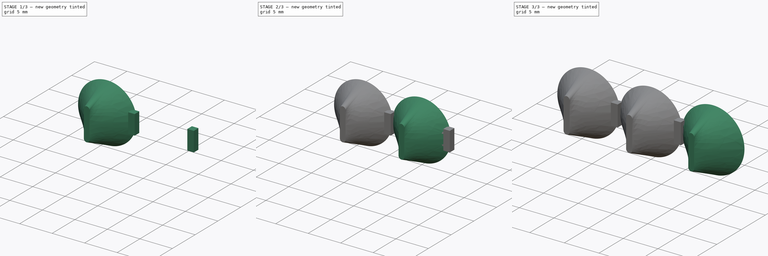
[diagram: build sequence overview — one tinted view per stage of 3, left to right]
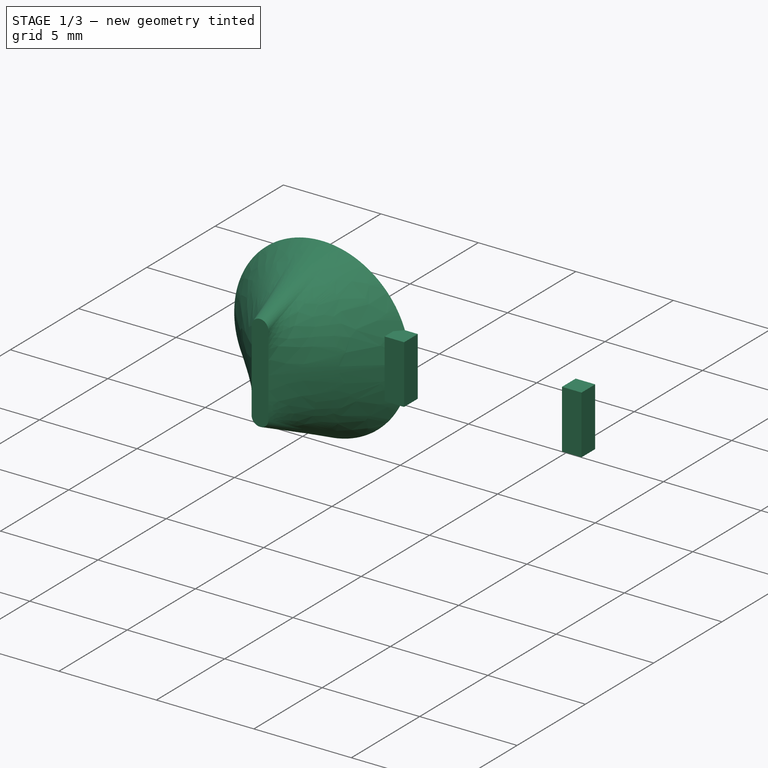
[diagram: stage 1 of 3 — iso view after this stage's code; geometry added in this stage tinted green]
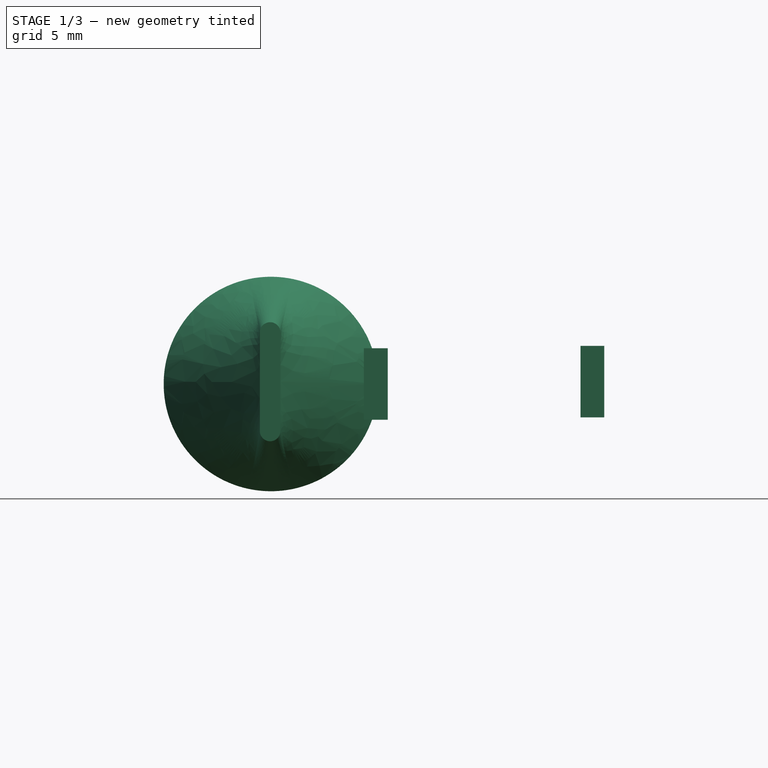
[diagram: stage 1 of 3 — front view after this stage's code; geometry added in this stage tinted green]
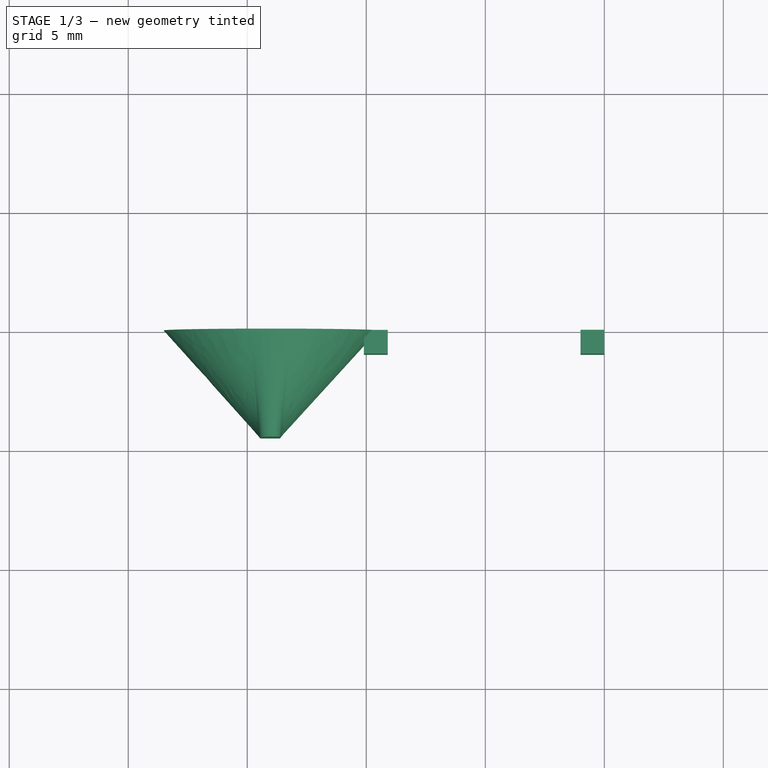
[diagram: stage 1 of 3 — top view after this stage's code; geometry added in this stage tinted green]
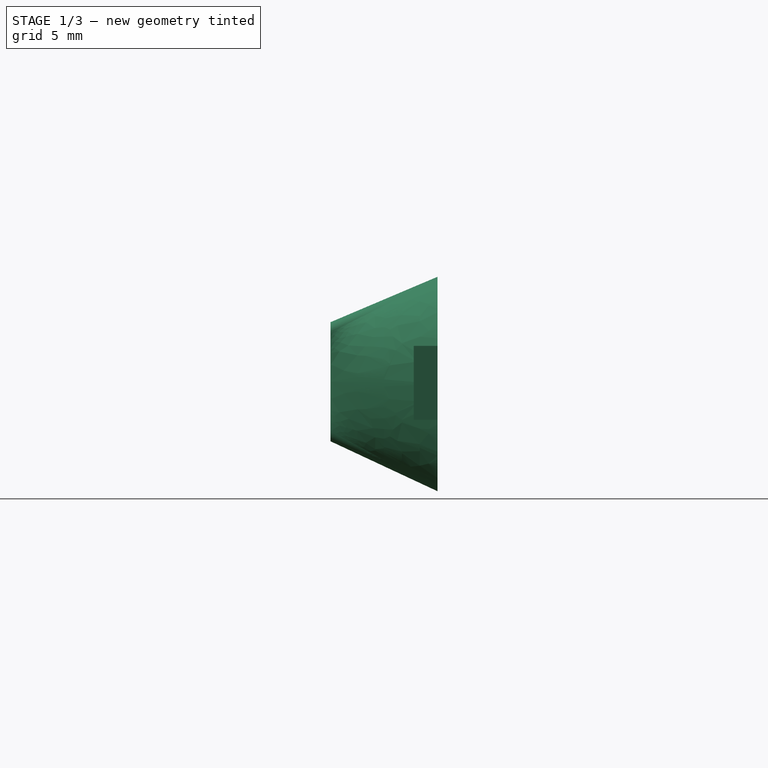
[diagram: stage 1 of 3 — right view after this stage's code; geometry added in this stage tinted green]
FCSTD DOCUMENT  (FreeCAD 0.19R24291 (Git))
Label: actuator8_side
License: All rights reserved
LicenseURL: http://en.wikipedia.org/wiki/All_rights_reserved
objects: Sketcher::SketchObject×13, PartDesign::AdditiveLoft×3, PartDesign::SubtractiveLoft×3, PartDesign::Plane×2, Part::Box×2, Spreadsheet::Sheet×1, PartDesign::Body×1
note: 30 computed .brp shape members not serialized (recipe doc carries the construction recipe); baked Part::Feature solids carry a one-line shape summary decoded from their .brp

FEATURE [Spreadsheet::Sheet] Spreadsheet
  cells = B2=pneumatic ; C2=actuator ; D2=three-section; E2==9mm; B4=soft cylinders; D4=out; E4=in; C5=r ; D5(cyl_r_o)=4.5; E5(cyl_r_in)=4.2; B7=shoulder; D7(shuld)=9
FEATURE [Sketcher::SketchObject] Sketch
  FullyConstrained = false
  MapMode = 5
  Placement = pos=(0,0,0) rot=(1,0,0;1.5708rad)
  Support = -> [XZ_Plane]
  expr: Constraints[11] = Spreadsheet.cyl_r_in
  expr: Constraints[13] = Spreadsheet.cyl_r_in
  expr: Constraints[7] = Spreadsheet.shuld
  expr: Constraints[6] = Spreadsheet.shuld
  expr: Constraints[5] = Spreadsheet.cyl_r_o
  expr: Constraints[4] = Spreadsheet.cyl_r_o
  expr: Constraints[12] = Spreadsheet.cyl_r_in
  expr: Constraints[1] = Spreadsheet.cyl_r_o
  sketch-geometry (16):
    g0: ArcOfCircle CenterX=0 CenterY=0 CenterZ=0 NormalX=0 NormalY=0 NormalZ=1 AngleXU=0 Radius=4.5 StartAngle=3.53897 EndAngle=5.86637
    g1: ArcOfCircle CenterX=-9 CenterY=0 CenterZ=0 NormalX=0 NormalY=0 NormalZ=1 AngleXU=0 Radius=4.5 StartAngle=0.407207 EndAngle=5.88776
    g2: ArcOfCircle CenterX=9 CenterY=0 CenterZ=0 NormalX=0 NormalY=0 NormalZ=1 AngleXU=0 Radius=4.5 StartAngle=3.55697 EndAngle=9.04236
    g3: ArcOfCircle CenterX=0 CenterY=0 CenterZ=0 NormalX=0 NormalY=0 NormalZ=1 AngleXU=0 Radius=4.2 StartAngle=3.54071 EndAngle=5.86248
    g4: ArcOfCircle CenterX=-9 CenterY=0 CenterZ=0 NormalX=0 NormalY=0 NormalZ=1 AngleXU=0 Radius=4.2 StartAngle=0.400501 EndAngle=5.88794
    g5: ArcOfCircle CenterX=9 CenterY=0 CenterZ=0 NormalX=0 NormalY=0 NormalZ=1 AngleXU=0 Radius=4.2 StartAngle=3.55872 EndAngle=9.02431
    g6: ArcOfCircle CenterX=0 CenterY=0 CenterZ=0 NormalX=0 NormalY=0 NormalZ=1 AngleXU=0 Radius=4.2 StartAngle=0.411459 EndAngle=2.74323
    g7: ArcOfCircle CenterX=0 CenterY=0 CenterZ=0 NormalX=0 NormalY=0 NormalZ=1 AngleXU=0 Radius=4.5 StartAngle=0.384244 EndAngle=2.73628
    g8: ArcOfCircle CenterX=-4.49939 CenterY=1.99308 CenterZ=0 NormalX=0 NormalY=0 NormalZ=1 AngleXU=0 Radius=0.424634 StartAngle=3.66126 EndAngle=5.74211
    g9: ArcOfCircle CenterX=-4.49939 CenterY=1.99308 CenterZ=0 NormalX=0 NormalY=0 NormalZ=1 AngleXU=0 Radius=0.726016 StartAngle=3.65342 EndAngle=5.75826
    g10: ArcOfCircle CenterX=-4.50187 CenterY=-2.04426 CenterZ=0 NormalX=0 NormalY=0 NormalZ=1 AngleXU=0 Radius=0.754474 StartAngle=0.577886 EndAngle=2.53985
    g11: ArcOfCircle CenterX=-4.50187 CenterY=-2.04426 CenterZ=0 NormalX=0 NormalY=0 NormalZ=1 AngleXU=0 Radius=0.464673 StartAngle=0.709586 EndAngle=2.40876
    g12: ArcOfCircle CenterX=4.50233 CenterY=2.00473 CenterZ=0 NormalX=0 NormalY=0 NormalZ=1 AngleXU=0 Radius=0.729266 StartAngle=3.60342 EndAngle=5.75529
    g13: ArcOfCircle CenterX=4.50233 CenterY=2.00473 CenterZ=0 NormalX=0 NormalY=0 NormalZ=1 AngleXU=0 Radius=0.458522 StartAngle=3.90757 EndAngle=5.50084
    g14: ArcOfCircle CenterX=4.50046 CenterY=-2.04794 CenterZ=0 NormalX=0 NormalY=0 NormalZ=1 AngleXU=0 Radius=0.745071 StartAngle=0.483492 EndAngle=2.67877
    g15: ArcOfCircle CenterX=4.50046 CenterY=-2.04794 CenterZ=0 NormalX=0 NormalY=0 NormalZ=1 AngleXU=0 Radius=0.447124 StartAngle=0.545626 EndAngle=2.61135
  constraints (37):
    c: Coincident(g0,g-1)
    c: Radius(g0) = 4.5
    c: PointOnObject(g1,g-1)
    c: PointOnObject(g2,g-1)
    c: Radius(g2) = 4.5
    c: Radius(g1) = 4.5
    c: Distance(g0,g1) = 9
    c: Distance(g0,g2) = 9
    c: Coincident(g3,g0)
    c: Coincident(g4,g1)
    c: Coincident(g5,g2)
    c: Radius(g4) = 4.2
    c: Radius(g3) = 4.2
    c: Radius(g5) = 4.2
    c: Equal(g3,g6)
    c: Coincident(g3,g6)
    c: Equal(g0,g7)
    c: Coincident(g0,g7)
    c: Coincident(g8,g1)
    c: Coincident(g8,g7)
    c: Coincident(g9,g8)
    c: Coincident(g9,g4)
    c: Coincident(g9,g6)
    c: Coincident(g10,g4)
    c: Coincident(g10,g3)
    c: Coincident(g11,g10)
    c: Coincident(g11,g1)
    c: Coincident(g11,g0)
    c: Coincident(g12,g6)
    c: Coincident(g12,g5)
    c: Coincident(g13,g12)
    c: Coincident(g13,g7)
    c: Coincident(g14,g3)
    c: Coincident(g14,g5)
    c: Coincident(g15,g14)
    c: Coincident(g15,g0)
    c: Coincident(g15,g2)
FEATURE [PartDesign::Plane] DatumPlane  label="out"
  AttachmentOffset = pos=(0,0,4.5) rot=(0,0,1;0rad)
  Length = 30
  MapMode = 5
  Placement = pos=(0,-4.5,-1e-15) rot=(1,0,0;1.5708rad)
  ResizeMode = 1
  Support = -> [XZ_Plane]
  Width = 30
FEATURE [PartDesign::Plane] DatumPlane001  label="in"
  AttachmentOffset = pos=(0,0,4) rot=(0,0,1;0rad)
  Length = 30
  MapMode = 5
  Placement = pos=(0,-4,-9e-16) rot=(1,0,0;1.5708rad)
  ResizeMode = 1
  Support = -> [XZ_Plane]
  Width = 30
FEATURE [Sketcher::SketchObject] Sketch001  label="ring_out"
  FullyConstrained = false
  MapMode = 5
  Placement = pos=(0,0,0) rot=(1,0,0;1.5708rad)
  Support = -> [XZ_Plane]
  sketch-geometry (1):
    g0: Circle CenterX=-9.00704 CenterY=0 CenterZ=0 NormalX=0 NormalY=0 NormalZ=1 AngleXU=0 Radius=4.50588
  constraints (1):
    c: PointOnObject(g0,g-1)
FEATURE [Sketcher::SketchObject] Sketch002  label="ring_in"
  FullyConstrained = false
  MapMode = 5
  Placement = pos=(0,0,0) rot=(1,0,0;1.5708rad)
  Support = -> [XZ_Plane]
  sketch-geometry (1):
    g0: Circle CenterX=-9.03385 CenterY=0 CenterZ=0 NormalX=0 NormalY=0 NormalZ=1 AngleXU=0 Radius=4.15766
  constraints (1):
    c: PointOnObject(g0,g-1)
FEATURE [Sketcher::SketchObject] Sketch003  label="top_o"
  FullyConstrained = false
  MapMode = 5
  Placement = pos=(0,-4.5,-1e-15) rot=(1,0,0;1.5708rad)
  Support = -> [DatumPlane]
  sketch-geometry (4):
    g0: ArcOfCircle CenterX=-9.03976 CenterY=-1.97382 CenterZ=0 NormalX=0 NormalY=0 NormalZ=1 AngleXU=0 Radius=0.431888 StartAngle=3.14159 EndAngle=6.28319
    g1: ArcOfCircle CenterX=-9.03976 CenterY=2.16511 CenterZ=0 NormalX=0 NormalY=0 NormalZ=1 AngleXU=0 Radius=0.431888 StartAngle=0 EndAngle=3.14159
    g2: LineSegment StartX=-8.60788 StartY=-1.97382 StartZ=0 EndX=-8.60788 EndY=2.16511 EndZ=0
    g3: LineSegment StartX=-9.47165 StartY=-1.97382 StartZ=0 EndX=-9.47165 EndY=2.16511 EndZ=0
  constraints (6):
    c: Tangent(g0,g3) = 1.5708
    c: Tangent(g0,g2) = -1.5708
    c: Tangent(g2,g1) = -1.5708
    c: Tangent(g3,g1) = 1.5708
    c: Vertical(g2)
    c: Equal(g0,g1)
FEATURE [Sketcher::SketchObject] Sketch004  label="top_in"
  FullyConstrained = false
  MapMode = 5
  Placement = pos=(0,-4,-9e-16) rot=(1,0,0;1.5708rad)
  Support = -> [DatumPlane001]
  sketch-geometry (4):
    g0: ArcOfCircle CenterX=-9.00189 CenterY=-1.95045 CenterZ=0 NormalX=0 NormalY=0 NormalZ=1 AngleXU=0 Radius=0.144752 StartAngle=3.14159 EndAngle=6.28319
    g1: ArcOfCircle CenterX=-9.00189 CenterY=1.9096 CenterZ=0 NormalX=0 NormalY=0 NormalZ=1 AngleXU=0 Radius=0.144752 StartAngle=0 EndAngle=3.14159
    g2: LineSegment StartX=-8.85714 StartY=-1.95045 StartZ=0 EndX=-8.85714 EndY=1.9096 EndZ=0
    g3: LineSegment StartX=-9.14664 StartY=-1.95045 StartZ=0 EndX=-9.14664 EndY=1.9096 EndZ=0
  constraints (6):
    c: Tangent(g0,g3) = 1.5708
    c: Tangent(g0,g2) = -1.5708
    c: Tangent(g2,g1) = -1.5708
    c: Tangent(g3,g1) = 1.5708
    c: Vertical(g2)
    c: Equal(g0,g1)
FEATURE [PartDesign::AdditiveLoft] AdditiveLoft  label="left"
  Closed = false
  Placement = pos=(0,0,0) rot=(1,0,0;1.5708rad)
  Profile = -> Sketch001
  Ruled = false
  Sections = -> [Sketch003]
FEATURE [PartDesign::Body] Body
  Group = -> [Sketch,DatumPlane,DatumPlane001,Sketch001,Sketch002,Sketch003,Sketch004,AdditiveLoft,SubtractiveLoft,Sketch005,Sketch006,AdditiveLoft001,Sketch007,Sketch008,SubtractiveLoft001,Sketch009,Sketch010,AdditiveLoft002,Sketch011,Sketch012,SubtractiveLoft002]
  Origin = -> Origin
  Tip = -> SubtractiveLoft002
FEATURE [Part::Box] Box  label="Cube"
  AttacherType = Attacher::AttachEngine3D
  Height = 3
  Length = 1
  Placement = pos=(-5.1,-1,-1.5) rot=(0,0,1;0rad)
  Width = 1
FEATURE [Part::Box] Box001  label="Cube001"
  AttacherType = Attacher::AttachEngine3D
  Height = 3
  Length = 1
  Placement = pos=(4,-1,-1.4) rot=(0,0,1;0rad)
  Width = 1
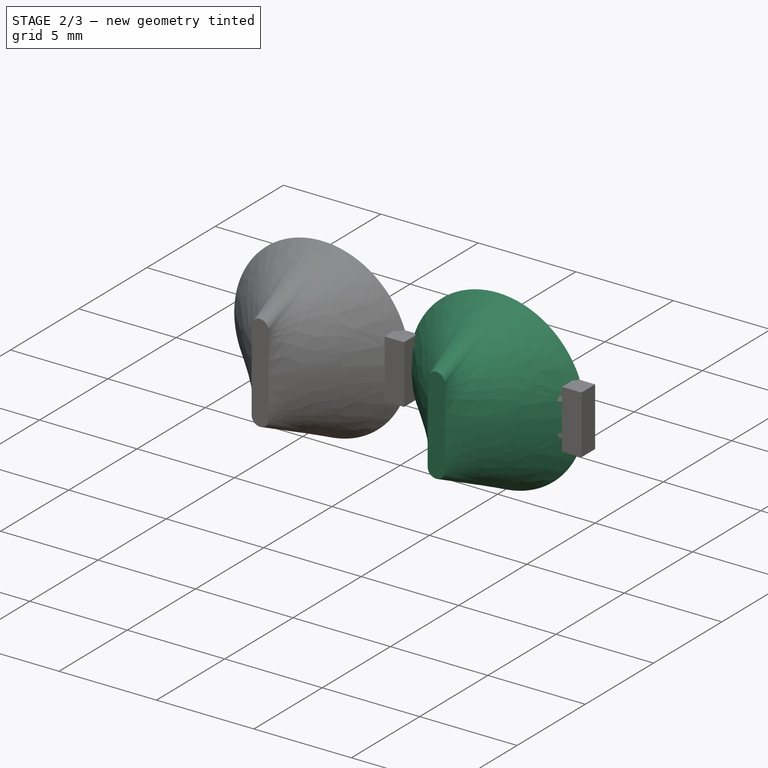
[diagram: stage 2 of 3 — iso view after this stage's code; geometry added in this stage tinted green]
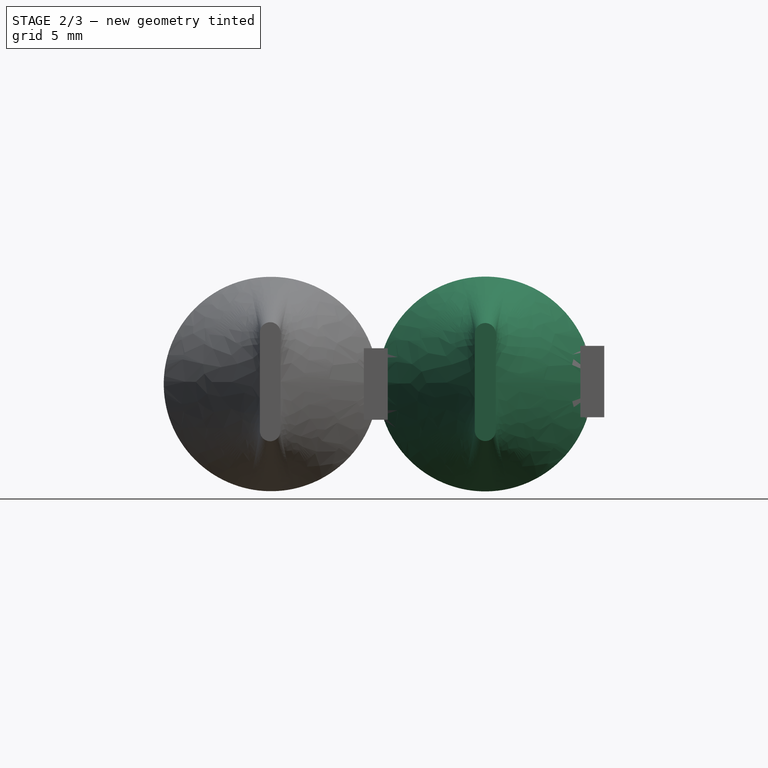
[diagram: stage 2 of 3 — front view after this stage's code; geometry added in this stage tinted green]
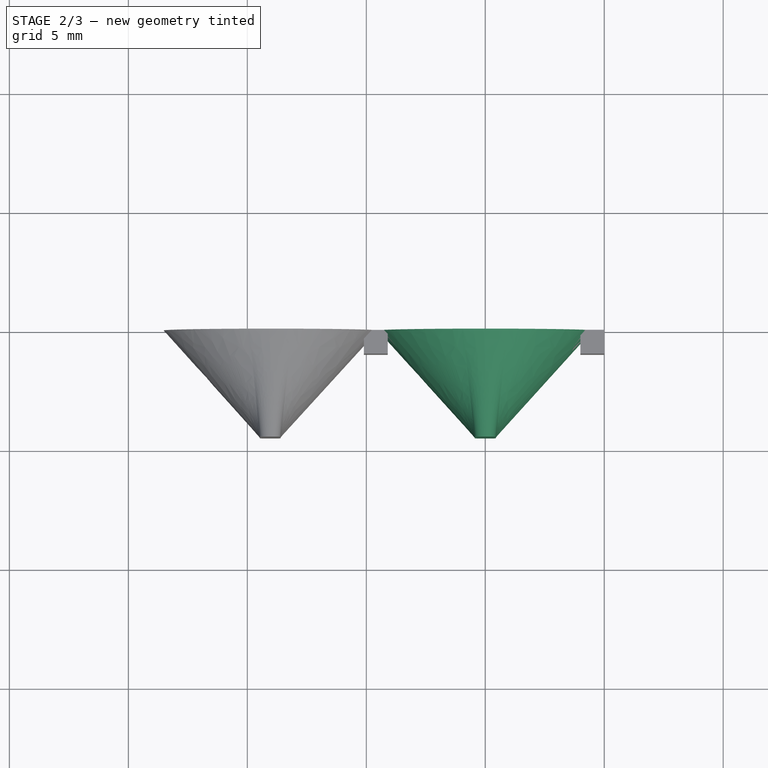
[diagram: stage 2 of 3 — top view after this stage's code; geometry added in this stage tinted green]
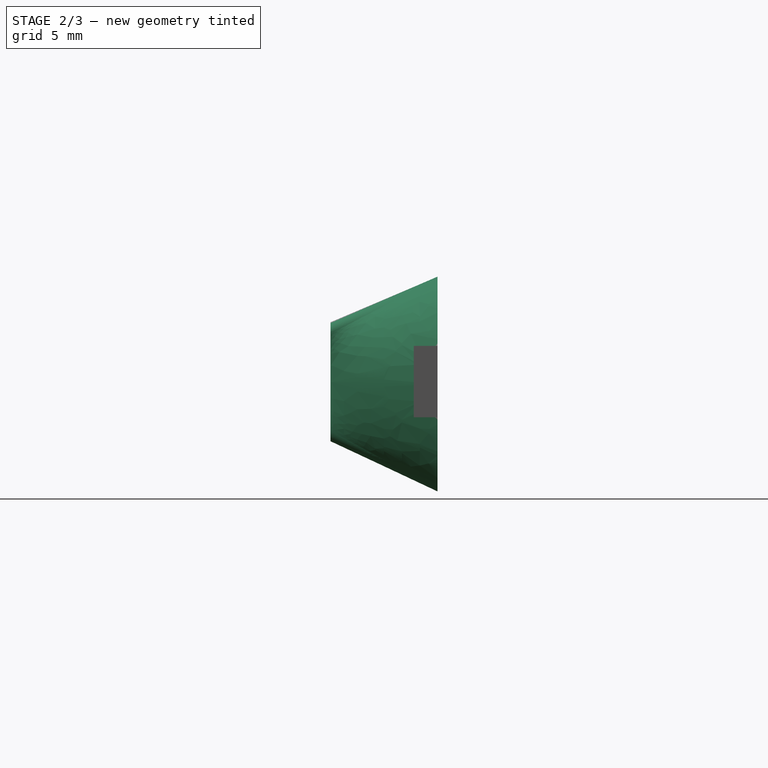
[diagram: stage 2 of 3 — right view after this stage's code; geometry added in this stage tinted green]
FEATURE [PartDesign::SubtractiveLoft] SubtractiveLoft  label="left_in"
  BaseFeature = -> AdditiveLoft
  Closed = false
  Placement = pos=(0,0,0) rot=(1,0,0;1.5708rad)
  Profile = -> Sketch002
  Ruled = false
  Sections = -> [Sketch004]
FEATURE [Sketcher::SketchObject] Sketch005  label="ringm_o"
  FullyConstrained = false
  MapMode = 5
  Placement = pos=(0,0,0) rot=(1,0,0;1.5708rad)
  Support = -> [XZ_Plane]
  sketch-geometry (1):
    g0: Circle CenterX=0 CenterY=0 CenterZ=0 NormalX=0 NormalY=0 NormalZ=1 AngleXU=0 Radius=4.51423
  constraints (1):
    c: Coincident(g0,g-1)
FEATURE [Sketcher::SketchObject] Sketch006  label="topm_o"
  FullyConstrained = false
  MapMode = 5
  Placement = pos=(0,-4.5,-1e-15) rot=(1,0,0;1.5708rad)
  Support = -> [DatumPlane]
  sketch-geometry (4):
    g0: ArcOfCircle CenterX=0 CenterY=-1.95714 CenterZ=0 NormalX=0 NormalY=0 NormalZ=1 AngleXU=0 Radius=0.439914 StartAngle=3.14159 EndAngle=6.28319
    g1: ArcOfCircle CenterX=0 CenterY=2.12206 CenterZ=0 NormalX=0 NormalY=0 NormalZ=1 AngleXU=0 Radius=0.439914 StartAngle=0 EndAngle=3.14159
    g2: LineSegment StartX=0.439914 StartY=-1.95714 StartZ=0 EndX=0.439914 EndY=2.12206 EndZ=0
    g3: LineSegment StartX=-0.439914 StartY=-1.95714 StartZ=0 EndX=-0.439914 EndY=2.12206 EndZ=0
  constraints (7):
    c: Tangent(g0,g3) = 1.5708
    c: Tangent(g0,g2) = -1.5708
    c: Tangent(g2,g1) = -1.5708
    c: Tangent(g3,g1) = 1.5708
    c: Vertical(g2)
    c: Equal(g0,g1)
    c: PointOnObject(g0,g-2)
FEATURE [PartDesign::AdditiveLoft] AdditiveLoft001  label="middle"
  BaseFeature = -> SubtractiveLoft
  Closed = false
  Placement = pos=(0,0,0) rot=(1,0,0;1.5708rad)
  Profile = -> Sketch005
  Ruled = false
  Sections = -> [Sketch006]
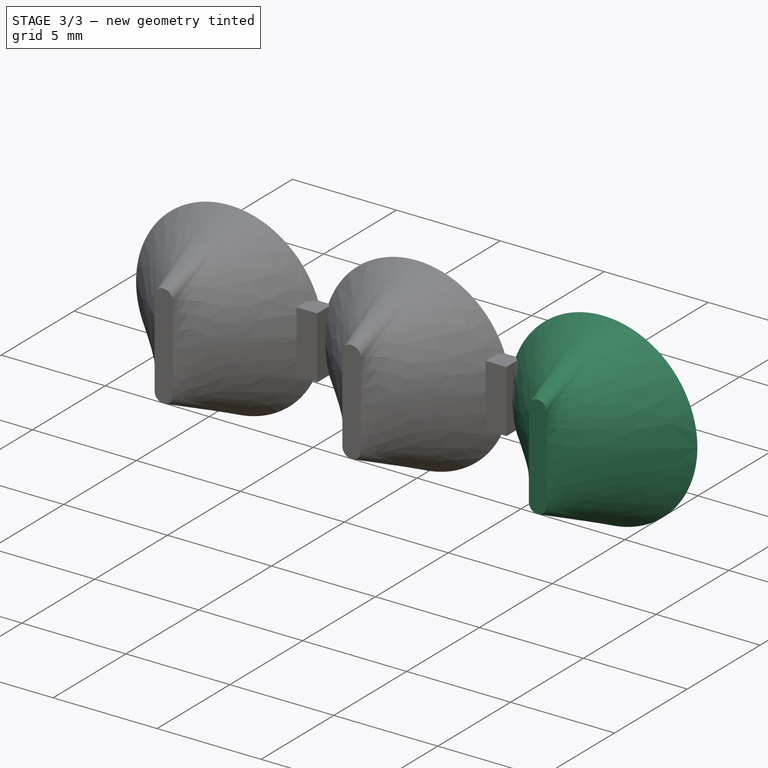
[diagram: stage 3 of 3 — iso view after this stage's code; geometry added in this stage tinted green]
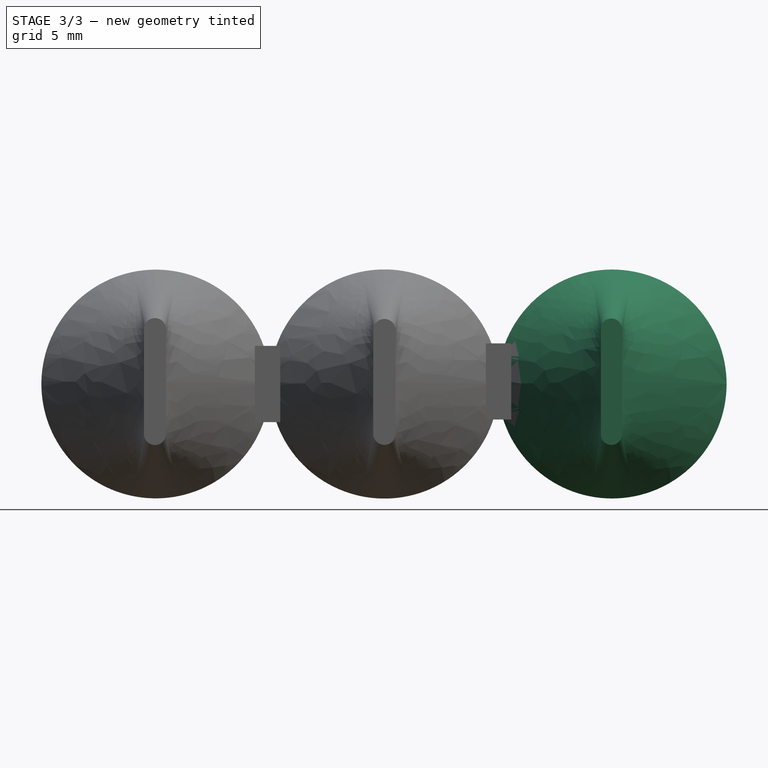
[diagram: stage 3 of 3 — front view after this stage's code; geometry added in this stage tinted green]
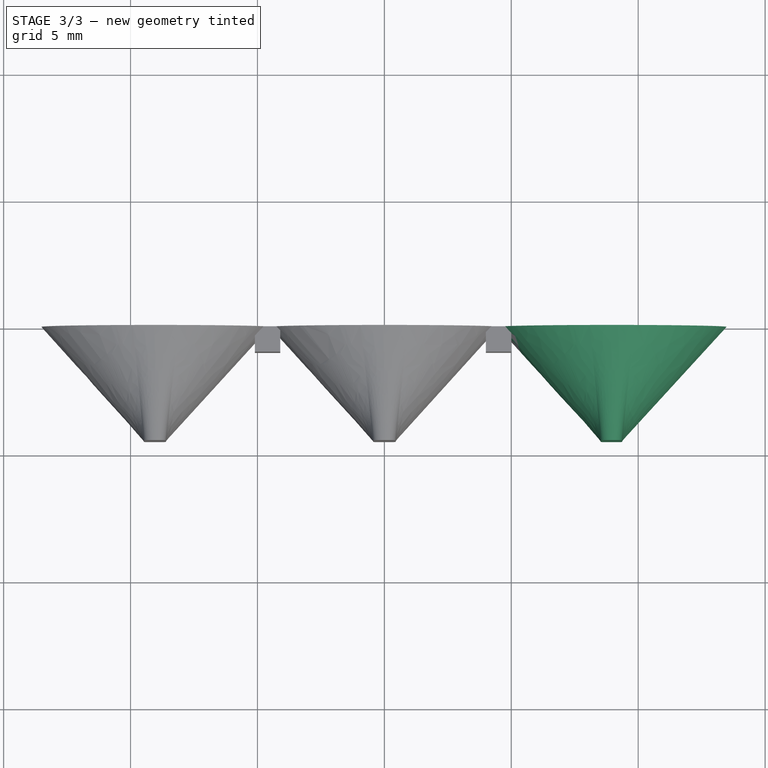
[diagram: stage 3 of 3 — top view after this stage's code; geometry added in this stage tinted green]
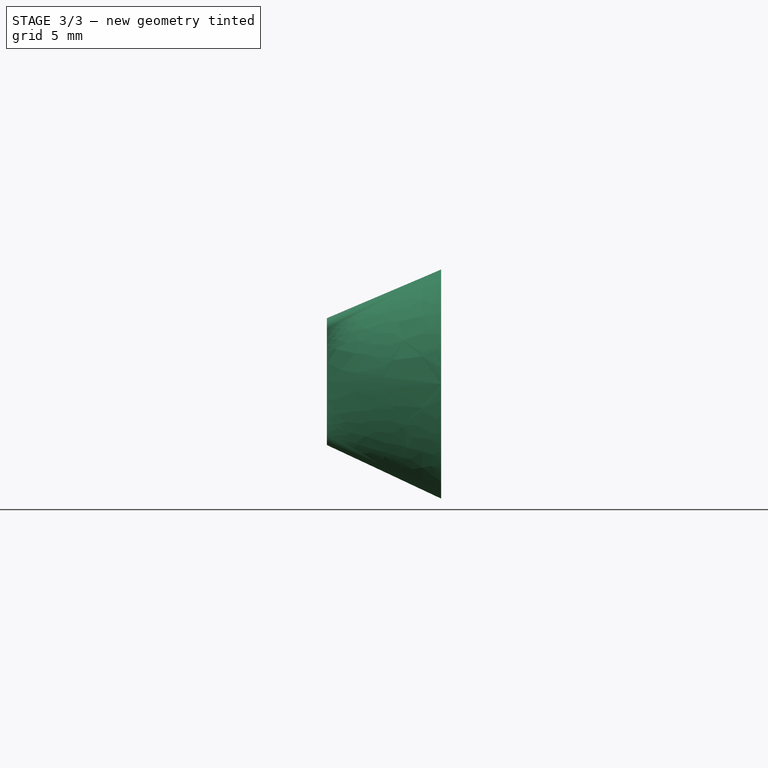
[diagram: stage 3 of 3 — right view after this stage's code; geometry added in this stage tinted green]
FEATURE [Sketcher::SketchObject] Sketch007  label="ringm_in"
  FullyConstrained = false
  MapMode = 5
  Placement = pos=(0,0,0) rot=(1,0,0;1.5708rad)
  Support = -> [XZ_Plane]
  sketch-geometry (1):
    g0: Circle CenterX=0 CenterY=0 CenterZ=0 NormalX=0 NormalY=0 NormalZ=1 AngleXU=0 Radius=4.17036
  constraints (1):
    c: Coincident(g0,g-1)
FEATURE [Sketcher::SketchObject] Sketch008  label="topm_in"
  FullyConstrained = false
  MapMode = 5
  Placement = pos=(0,-4,-9e-16) rot=(1,0,0;1.5708rad)
  Support = -> [DatumPlane001]
  sketch-geometry (4):
    g0: ArcOfCircle CenterX=0 CenterY=-2.02108 CenterZ=0 NormalX=0 NormalY=0 NormalZ=1 AngleXU=0 Radius=0.208831 StartAngle=3.14159 EndAngle=6.28319
    g1: ArcOfCircle CenterX=0 CenterY=1.88705 CenterZ=0 NormalX=0 NormalY=0 NormalZ=1 AngleXU=0 Radius=0.208831 StartAngle=0 EndAngle=3.14159
    g2: LineSegment StartX=0.208831 StartY=-2.02108 StartZ=0 EndX=0.208831 EndY=1.88705 EndZ=0
    g3: LineSegment StartX=-0.208831 StartY=-2.02108 StartZ=0 EndX=-0.208831 EndY=1.88705 EndZ=0
  constraints (7):
    c: Tangent(g0,g3) = 1.5708
    c: Tangent(g0,g2) = -1.5708
    c: Tangent(g2,g1) = -1.5708
    c: Tangent(g3,g1) = 1.5708
    c: Vertical(g2)
    c: Equal(g0,g1)
    c: PointOnObject(g0,g-2)
FEATURE [PartDesign::SubtractiveLoft] SubtractiveLoft001  label="middle_in"
  BaseFeature = -> AdditiveLoft001
  Closed = false
  Placement = pos=(0,0,0) rot=(1,0,0;1.5708rad)
  Profile = -> Sketch007
  Ruled = false
  Sections = -> [Sketch008]
FEATURE [Sketcher::SketchObject] Sketch009
  FullyConstrained = false
  MapMode = 5
  Placement = pos=(0,0,0) rot=(1,0,0;1.5708rad)
  Support = -> [XZ_Plane]
  sketch-geometry (1):
    g0: Circle CenterX=8.97208 CenterY=0 CenterZ=0 NormalX=0 NormalY=0 NormalZ=1 AngleXU=0 Radius=4.51021
  constraints (1):
    c: PointOnObject(g0,g-1)
FEATURE [Sketcher::SketchObject] Sketch010
  FullyConstrained = false
  MapMode = 5
  Placement = pos=(0,-4.5,-1e-15) rot=(1,0,0;1.5708rad)
  Support = -> [DatumPlane]
  sketch-geometry (4):
    g0: ArcOfCircle CenterX=8.94504 CenterY=-1.9819 CenterZ=0 NormalX=0 NormalY=0 NormalZ=1 AngleXU=0 Radius=0.417662 StartAngle=3.14159 EndAngle=6.28319
    g1: ArcOfCircle CenterX=8.94504 CenterY=2.16489 CenterZ=0 NormalX=0 NormalY=0 NormalZ=1 AngleXU=0 Radius=0.417662 StartAngle=0 EndAngle=3.14159
    g2: LineSegment StartX=9.3627 StartY=-1.9819 StartZ=0 EndX=9.3627 EndY=2.16489 EndZ=0
    g3: LineSegment StartX=8.52737 StartY=-1.9819 StartZ=0 EndX=8.52737 EndY=2.16489 EndZ=0
  constraints (6):
    c: Tangent(g0,g3) = 1.5708
    c: Tangent(g0,g2) = -1.5708
    c: Tangent(g2,g1) = -1.5708
    c: Tangent(g3,g1) = 1.5708
    c: Vertical(g2)
    c: Equal(g0,g1)
FEATURE [PartDesign::AdditiveLoft] AdditiveLoft002  label="right"
  BaseFeature = -> SubtractiveLoft001
  Closed = false
  Placement = pos=(0,0,0) rot=(1,0,0;1.5708rad)
  Profile = -> Sketch009
  Ruled = false
  Sections = -> [Sketch010]
FEATURE [Sketcher::SketchObject] Sketch011
  FullyConstrained = false
  MapMode = 5
  Placement = pos=(0,0,0) rot=(1,0,0;1.5708rad)
  Support = -> [XZ_Plane]
  sketch-geometry (1):
    g0: Circle CenterX=9.028 CenterY=0 CenterZ=0 NormalX=0 NormalY=0 NormalZ=1 AngleXU=0 Radius=4.15365
  constraints (1):
    c: PointOnObject(g0,g-1)
FEATURE [Sketcher::SketchObject] Sketch012
  FullyConstrained = false
  MapMode = 5
  Placement = pos=(0,-4,-9e-16) rot=(1,0,0;1.5708rad)
  Support = -> [DatumPlane001]
  sketch-geometry (4):
    g0: ArcOfCircle CenterX=8.97867 CenterY=-1.99085 CenterZ=0 NormalX=0 NormalY=0 NormalZ=1 AngleXU=0 Radius=0.238664 StartAngle=3.14159 EndAngle=6.28319
    g1: ArcOfCircle CenterX=8.97867 CenterY=1.94711 CenterZ=0 NormalX=0 NormalY=0 NormalZ=1 AngleXU=0 Radius=0.238664 StartAngle=0 EndAngle=3.14159
    g2: LineSegment StartX=9.21733 StartY=-1.99085 StartZ=0 EndX=9.21733 EndY=1.94711 EndZ=0
    g3: LineSegment StartX=8.74001 StartY=-1.99085 StartZ=0 EndX=8.74001 EndY=1.94711 EndZ=0
  constraints (6):
    c: Tangent(g0,g3) = 1.5708
    c: Tangent(g0,g2) = -1.5708
    c: Tangent(g2,g1) = -1.5708
    c: Tangent(g3,g1) = 1.5708
    c: Vertical(g2)
    c: Equal(g0,g1)
FEATURE [PartDesign::SubtractiveLoft] SubtractiveLoft002  label="right_in"
  BaseFeature = -> AdditiveLoft002
  Closed = false
  Placement = pos=(0,0,0) rot=(1,0,0;1.5708rad)
  Profile = -> Sketch011
  Ruled = false
  Sections = -> [Sketch012]
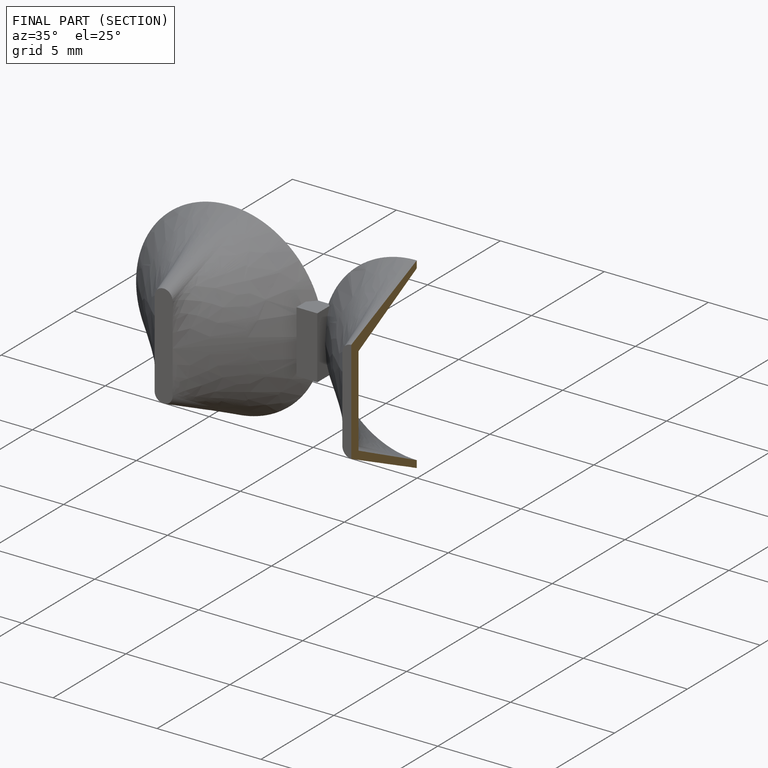
[diagram: finished part — half-section view (interior)]
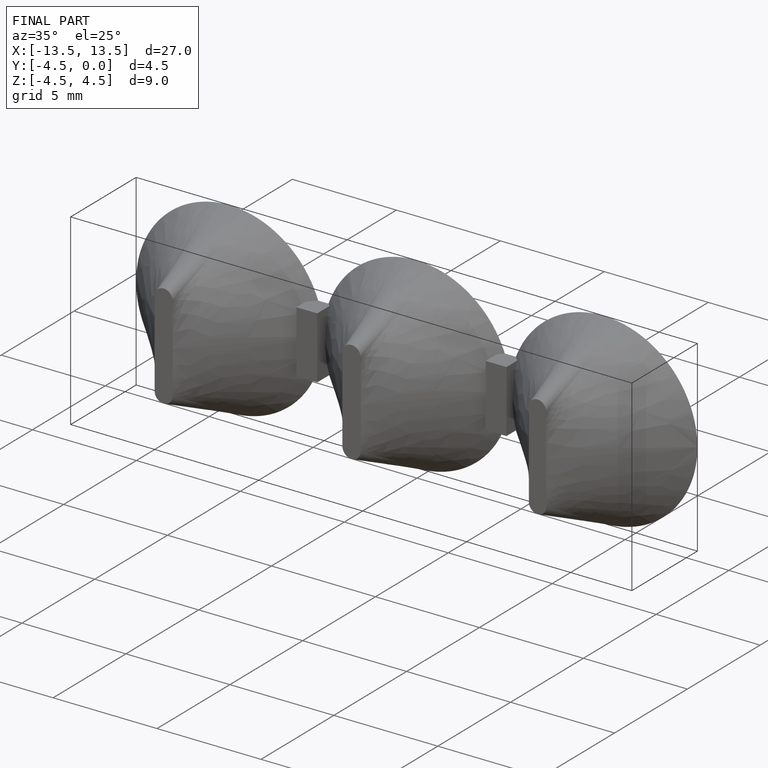
[diagram: finished part — iso view with bounding-box wireframe]
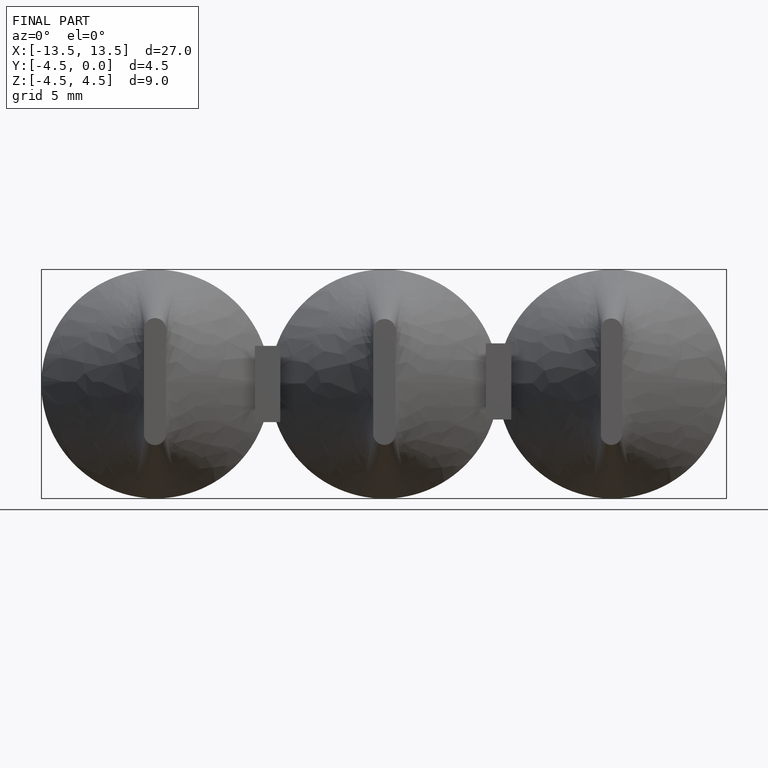
[diagram: finished part — front view with bounding-box wireframe]
